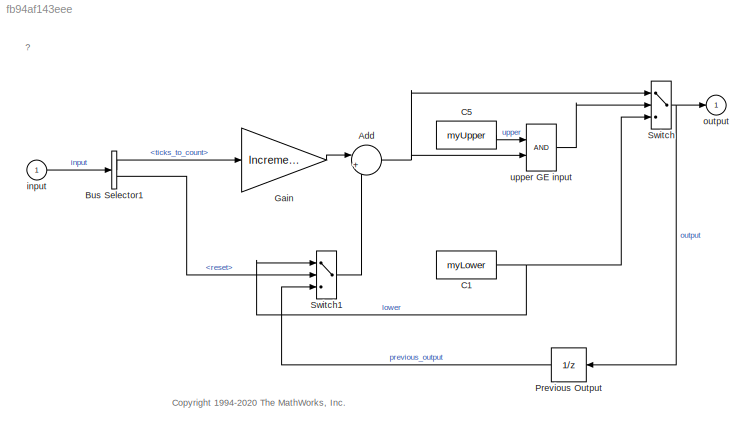
MODEL slx_fb94af143eee
KIND model
CONFIG AbsTol = auto
CONFIG EnableMultiTasking = on
CONFIG FixedStep = Auto
CONFIG MaxStep = auto
CONFIG MinStep = auto
CONFIG PostLoadFcn = rtwdemo_overrides={'SupportAbsoluteTime','LaunchReport','PassReuseOutputArgsAs','GenerateCodeMetricsReport','ProdHWDeviceType','PortableWordSizes','ProdIntDivRoundTo'};\nrtwconfiguredemo(gcs,'ERT',rtwdemo_overrides{:});\nrtwdemo_cs=getActiveConfigSet(gcs);\nsetProp(rtwdemo_cs,'CustomSymbolStr','$R$N$M');\nset_param(gcs,'dirty','off');\nclear rtwdemo_overrides rtwdemo_cs\n\nSILModelBlockData
CONFIG RelTol = 1e-3
CONFIG SampleTimeConstraint = STIndependent
CONFIG SolverName = FixedStepDiscrete
CONFIG StartTime = 0.0
CONFIG StopTime = 10.0
WORKSPACE source: MATLAB code (in-file)
WORKSPACE myLower = Simulink.Parameter
WORKSPACE code: myLower.Value = uint8(40);
WORKSPACE myUpper = Simulink.Parameter
WORKSPACE code: myUpper.Value = uint8(70);
BLOCK [Sum] Add
  Inputs = |++
  NameLocation = top
BLOCK [BusSelector] Bus Selector1
  OutputSignals = ticks_to_count,reset
BLOCK [Constant] C1
  OutDataTypeStr = uint8
  Value = myLower
BLOCK [Constant] C5
  OutDataTypeStr = uint8
  Value = myUpper
BLOCK [Gain] Gain
  Gain = Increment
  OutDataTypeStr = uint8
  ParamDataTypeStr = uint8
BLOCK [UnitDelay] Previous Output
  HasFrameUpgradeWarning = on
  InitialCondition = 50
  SampleTime = -1
BLOCK [Switch] Switch
  SaturateOnIntegerOverflow = off
  Threshold = 0.5
BLOCK [Switch] Switch1
  Criteria = u2 ~= 0
  SaturateOnIntegerOverflow = off
  Threshold = 0.5
BLOCK [Inport] input
  OutDataTypeStr = Bus: SilCounterBus
  PortDimensions = 1
  SamplingMode = Sample based
  SignalType = real
BLOCK [Outport] output
  VectorParamsAs1DForOutWhenUnconnected = off
BLOCK [RelationalOperator] upper GE input
  AttributesFormatString = \n
  Priority = 0
ANNOTATION (root): ?
ANNOTATION (root): <copyright redacted>
NET Add:1 -> Switch:1, upper GE input:2
LINE Bus Selector1:1 -> Gain:1
LINE Bus Selector1:2 -> Switch1:2
NET C1:1 -> Switch1:1, Switch:3
LINE C5:1 -> upper GE input:1
LINE Gain:1 -> Add:1
LINE Previous Output:1 -> Switch1:3
LINE Switch1:1 -> Add:2
NET Switch:1 -> Previous Output:1, output:1
LINE input:1 -> Bus Selector1:1
LINE upper GE input:1 -> Switch:2
note: NET lines group one-source signal fan-out (src -> all destinations, sorted); 1:1 wires keep LINE
